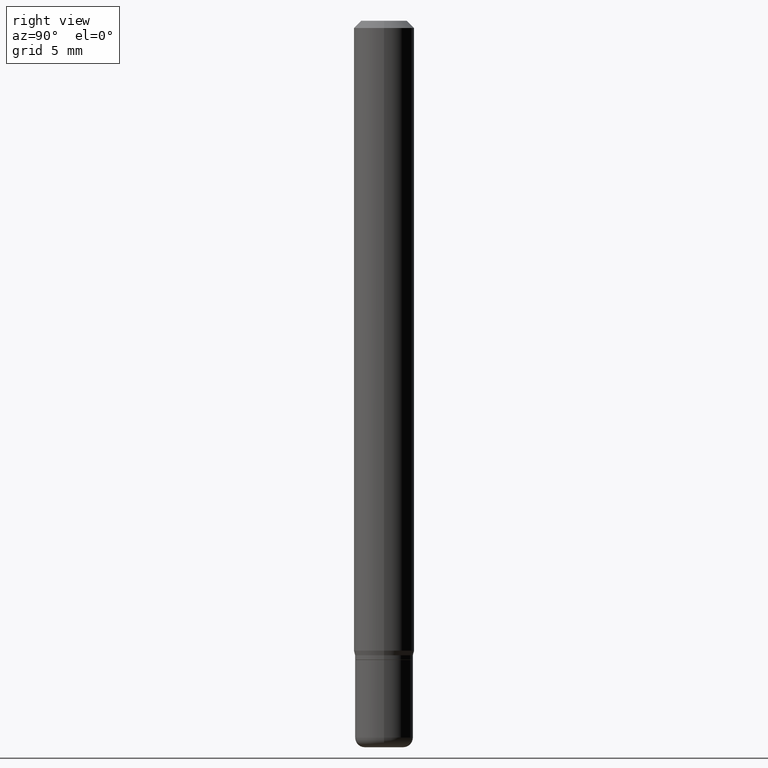
[diagram: clean part render]
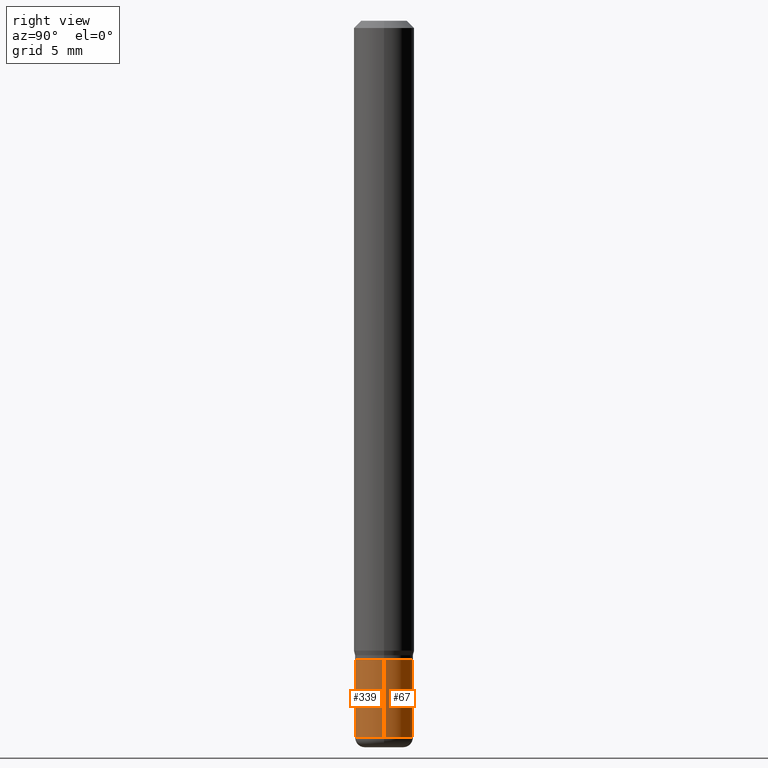
[diagram: same view with one multi-face feature highlighted, each face labeled with its STEP entity id]
A machine part, right view. The highlighted faces form ONE feature: a constant-radius fillet chain: 2 tangent blend faces with common blend radius 1.524 mm. The faces share edges in the B-rep.
Their STEP definitions:
[1] entity #339 (Cylinder):
#8 = CYLINDRICAL_SURFACE ( 'NONE', #334, 0.06000000000000001860 ) ;
#15 = ORIENTED_EDGE ( 'NONE', *, *, #108, .T. ) ;
#53 = DIRECTION ( 'NONE',  ( -2.445468806185136597E-29, 3.491481338843145583E-15, 1.000000000000000000 ) ) ;
#79 = DIRECTION ( 'NONE',  ( -2.445468806185136877E-29, 3.491481338843145188E-15, 1.000000000000000000 ) ) ;
#103 = ORIENTED_EDGE ( 'NONE', *, *, #428, .F. ) ;
#108 = EDGE_CURVE ( 'NONE', #289, #364, #357, .T. ) ;
#140 = VERTEX_POINT ( 'NONE', #205 ) ;
#179 = DIRECTION ( 'NONE',  ( -2.445468806185136597E-29, 3.491481338843145583E-15, 1.000000000000000000 ) ) ;
#180 = EDGE_LOOP ( 'NONE', ( #457, #15, #293, #103 ) ) ;
#181 = AXIS2_PLACEMENT_3D ( 'NONE', #243, #361, #395 ) ;
#192 = AXIS2_PLACEMENT_3D ( 'NONE', #229, #179, #261 ) ;
#205 = CARTESIAN_POINT ( 'NONE',  ( -0.05999999999999999778, -4.461748232924343562E-15, -1.320000000000000062 ) ) ;
#227 = VECTOR ( 'NONE', #79, 39.37007874015748143 ) ;
#229 = CARTESIAN_POINT ( 'NONE',  ( 3.228018824164380442E-29, -4.608755367272952437E-15, -1.320000000000000062 ) ) ;
#237 = EDGE_CURVE ( 'NONE', #364, #470, #392, .T. ) ;
#243 = CARTESIAN_POINT ( 'NONE',  ( 3.619293833154002365E-29, -5.167392381487854879E-15, -1.479999999999999982 ) ) ;
#249 = CIRCLE ( 'NONE', #192, 0.05999999999999999778 ) ;
#250 = LINE ( 'NONE', #308, #461 ) ;
#251 = FACE_OUTER_BOUND ( 'NONE', #180, .T. ) ;
#254 = CARTESIAN_POINT ( 'NONE',  ( 0.000000000000000000, 0.000000000000000000, 0.000000000000000000 ) ) ;
#261 = DIRECTION ( 'NONE',  ( 1.000000000000000000, -6.982962677686268288E-15, 0.000000000000000000 ) ) ;
#289 = VERTEX_POINT ( 'NONE', #330 ) ;
#293 = ORIENTED_EDGE ( 'NONE', *, *, #237, .T. ) ;
#294 = DIRECTION ( 'NONE',  ( 1.000000000000000000, -6.982962677686266711E-15, 4.876176775795935793E-29 ) ) ;
#308 = CARTESIAN_POINT ( 'NONE',  ( -0.06000000000000001860, 4.263256414560602437E-16, -2.951361054152944114E-30 ) ) ;
#330 = CARTESIAN_POINT ( 'NONE',  ( -0.06000000000000003247, -4.461748232924343562E-15, -1.479999999999999982 ) ) ;
#334 = AXIS2_PLACEMENT_3D ( 'NONE', #254, #53, #294 ) ;
#339 = ADVANCED_FACE ( 'NONE', ( #251 ), #8, .T. ) ;
#357 = CIRCLE ( 'NONE', #181, 0.06000000000000003247 ) ;
#361 = DIRECTION ( 'NONE',  ( -2.445468806185136597E-29, 3.491481338843145583E-15, 1.000000000000000000 ) ) ;
#364 = VERTEX_POINT ( 'NONE', #448 ) ;
#389 = DIRECTION ( 'NONE',  ( -2.445468806185136877E-29, 3.491481338843145188E-15, 1.000000000000000000 ) ) ;
#392 = LINE ( 'NONE', #437, #227 ) ;
#395 = DIRECTION ( 'NONE',  ( 1.000000000000000000, -6.982962677686264344E-15, 0.000000000000000000 ) ) ;
#423 = EDGE_CURVE ( 'NONE', #289, #140, #250, .T. ) ;
#427 = CARTESIAN_POINT ( 'NONE',  ( 0.05999999999999999778, -5.027733127934128282E-15, -1.320000000000000062 ) ) ;
#428 = EDGE_CURVE ( 'NONE', #140, #470, #249, .T. ) ;
#437 = CARTESIAN_POINT ( 'NONE',  ( 0.06000000000000001860, -4.189777606611761407E-16, 2.925706065477562457E-30 ) ) ;
#448 = CARTESIAN_POINT ( 'NONE',  ( 0.06000000000000003247, -5.586370142149031512E-15, -1.479999999999999982 ) ) ;
#457 = ORIENTED_EDGE ( 'NONE', *, *, #423, .F. ) ;
#461 = VECTOR ( 'NONE', #389, 39.37007874015748143 ) ;
#470 = VERTEX_POINT ( 'NONE', #427 ) ;
[2] entity #67 (Cylinder):
#1 = ORIENTED_EDGE ( 'NONE', *, *, #196, .T. ) ;
#63 = AXIS2_PLACEMENT_3D ( 'NONE', #168, #452, #332 ) ;
#67 = ADVANCED_FACE ( 'NONE', ( #266 ), #186, .T. ) ;
#76 = DIRECTION ( 'NONE',  ( 1.000000000000000000, -6.982962677686264344E-15, 0.000000000000000000 ) ) ;
#79 = DIRECTION ( 'NONE',  ( -2.445468806185136877E-29, 3.491481338843145188E-15, 1.000000000000000000 ) ) ;
#104 = AXIS2_PLACEMENT_3D ( 'NONE', #275, #246, #76 ) ;
#116 = CIRCLE ( 'NONE', #63, 0.05999999999999999778 ) ;
#140 = VERTEX_POINT ( 'NONE', #205 ) ;
#150 = CARTESIAN_POINT ( 'NONE',  ( 0.000000000000000000, 0.000000000000000000, 0.000000000000000000 ) ) ;
#168 = CARTESIAN_POINT ( 'NONE',  ( 3.228018824164380442E-29, -4.608755367272952437E-15, -1.320000000000000062 ) ) ;
#172 = ORIENTED_EDGE ( 'NONE', *, *, #423, .T. ) ;
#186 = CYLINDRICAL_SURFACE ( 'NONE', #438, 0.06000000000000001860 ) ;
#196 = EDGE_CURVE ( 'NONE', #364, #289, #502, .T. ) ;
#205 = CARTESIAN_POINT ( 'NONE',  ( -0.05999999999999999778, -4.461748232924343562E-15, -1.320000000000000062 ) ) ;
#224 = EDGE_LOOP ( 'NONE', ( #1, #172, #486, #449 ) ) ;
#227 = VECTOR ( 'NONE', #79, 39.37007874015748143 ) ;
#237 = EDGE_CURVE ( 'NONE', #364, #470, #392, .T. ) ;
#246 = DIRECTION ( 'NONE',  ( -2.445468806185136597E-29, 3.491481338843145583E-15, 1.000000000000000000 ) ) ;
#250 = LINE ( 'NONE', #308, #461 ) ;
#266 = FACE_OUTER_BOUND ( 'NONE', #224, .T. ) ;
#275 = CARTESIAN_POINT ( 'NONE',  ( 3.619293833154002365E-29, -5.167392381487854879E-15, -1.479999999999999982 ) ) ;
#289 = VERTEX_POINT ( 'NONE', #330 ) ;
#308 = CARTESIAN_POINT ( 'NONE',  ( -0.06000000000000001860, 4.263256414560602437E-16, -2.951361054152944114E-30 ) ) ;
#309 = DIRECTION ( 'NONE',  ( -2.445468806185136597E-29, 3.491481338843145583E-15, 1.000000000000000000 ) ) ;
#330 = CARTESIAN_POINT ( 'NONE',  ( -0.06000000000000003247, -4.461748232924343562E-15, -1.479999999999999982 ) ) ;
#332 = DIRECTION ( 'NONE',  ( 1.000000000000000000, -6.982962677686268288E-15, 0.000000000000000000 ) ) ;
#364 = VERTEX_POINT ( 'NONE', #448 ) ;
#380 = EDGE_CURVE ( 'NONE', #470, #140, #116, .T. ) ;
#389 = DIRECTION ( 'NONE',  ( -2.445468806185136877E-29, 3.491481338843145188E-15, 1.000000000000000000 ) ) ;
#392 = LINE ( 'NONE', #437, #227 ) ;
#423 = EDGE_CURVE ( 'NONE', #289, #140, #250, .T. ) ;
#427 = CARTESIAN_POINT ( 'NONE',  ( 0.05999999999999999778, -5.027733127934128282E-15, -1.320000000000000062 ) ) ;
#437 = CARTESIAN_POINT ( 'NONE',  ( 0.06000000000000001860, -4.189777606611761407E-16, 2.925706065477562457E-30 ) ) ;
#438 = AXIS2_PLACEMENT_3D ( 'NONE', #150, #309, #466 ) ;
#448 = CARTESIAN_POINT ( 'NONE',  ( 0.06000000000000003247, -5.586370142149031512E-15, -1.479999999999999982 ) ) ;
#449 = ORIENTED_EDGE ( 'NONE', *, *, #237, .F. ) ;
#452 = DIRECTION ( 'NONE',  ( -2.445468806185136597E-29, 3.491481338843145583E-15, 1.000000000000000000 ) ) ;
#461 = VECTOR ( 'NONE', #389, 39.37007874015748143 ) ;
#466 = DIRECTION ( 'NONE',  ( 1.000000000000000000, -6.982962677686266711E-15, 4.876176775795935793E-29 ) ) ;
#470 = VERTEX_POINT ( 'NONE', #427 ) ;
#486 = ORIENTED_EDGE ( 'NONE', *, *, #380, .F. ) ;
#502 = CIRCLE ( 'NONE', #104, 0.06000000000000003247 ) ;